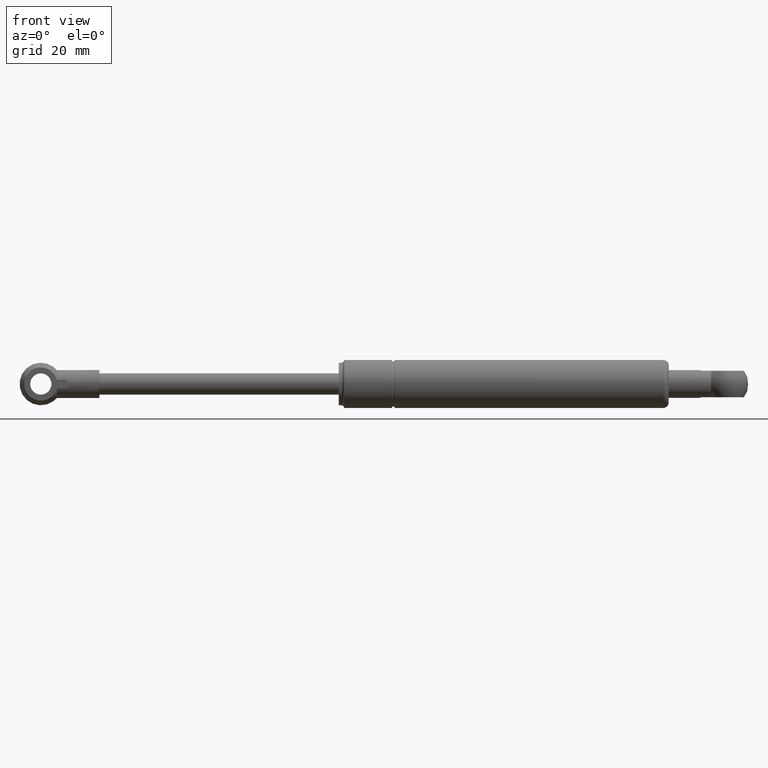
[diagram: clean part render]
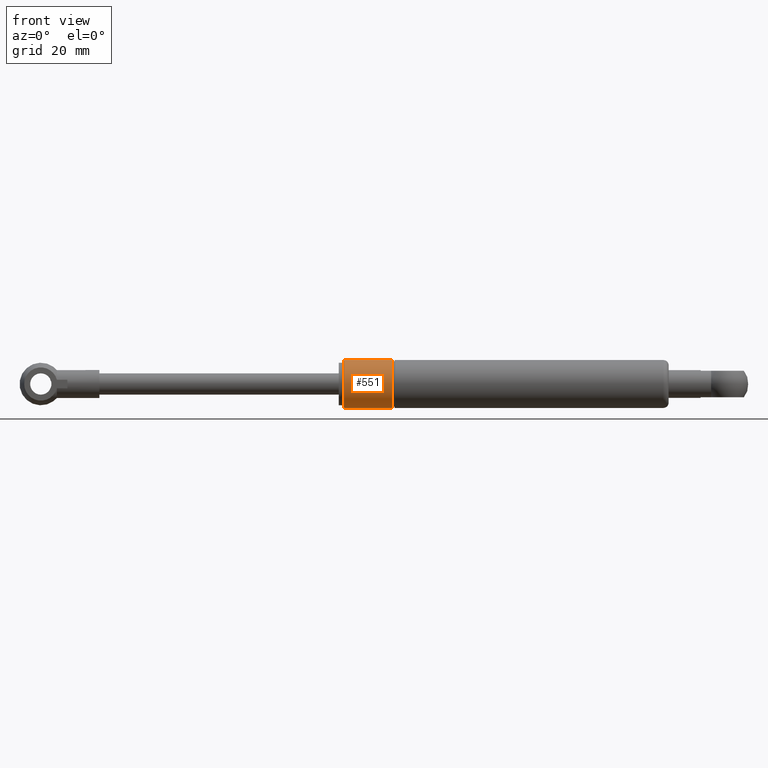
[diagram: same view with one face highlighted and labeled with its STEP entity id]
A machine part, front view. The second image highlights one B-rep face of the part: STEP entity #551.
In plain terms, the highlighted cylindrical surface (bore or boss wall) has radius 9 mm, axis along (1, 0, -0).
Its self-contained STEP definition (entity closure, byte-faithful):
#62=CYLINDRICAL_SURFACE('',#606,9.00000000000001);
#87=FACE_BOUND('',#175,.T.);
#125=FACE_OUTER_BOUND('',#174,.T.);
#174=EDGE_LOOP('',(#395));
#175=EDGE_LOOP('',(#396));
#251=CIRCLE('',#605,9.00000000000001);
#252=CIRCLE('',#607,9.00000000000003);
#294=VERTEX_POINT('',#907);
#295=VERTEX_POINT('',#910);
#340=EDGE_CURVE('',#294,#294,#251,.T.);
#341=EDGE_CURVE('',#295,#295,#252,.T.);
#395=ORIENTED_EDGE('',*,*,#341,.T.);
#396=ORIENTED_EDGE('',*,*,#340,.T.);
#551=ADVANCED_FACE('',(#125,#87),#62,.T.);
#605=AXIS2_PLACEMENT_3D('',#908,#713,#714);
#606=AXIS2_PLACEMENT_3D('',#909,#715,#716);
#607=AXIS2_PLACEMENT_3D('',#911,#717,#718);
#713=DIRECTION('center_axis',(-1.,0.,1.20871055100319E-16));
#714=DIRECTION('ref_axis',(1.20871055100319E-16,0.,1.));
#715=DIRECTION('center_axis',(1.,0.,-1.20871055100319E-16));
#716=DIRECTION('ref_axis',(1.20871055100319E-16,0.,1.));
#717=DIRECTION('center_axis',(1.,0.,-1.20871055100319E-16));
#718=DIRECTION('ref_axis',(1.20871055100319E-16,0.,1.));
#907=CARTESIAN_POINT('',(20.,-1.10218211923262E-15,-9.00000000000002));
#908=CARTESIAN_POINT('Origin',(20.,0.,-2.41742110200639E-15));
#909=CARTESIAN_POINT('Origin',(62.9999999999999,0.,-7.61487647132012E-15));
#910=CARTESIAN_POINT('',(1.99999999999989,0.,9.00000000000003));
#911=CARTESIAN_POINT('Origin',(1.99999999999989,0.,-2.41742110200625E-16));